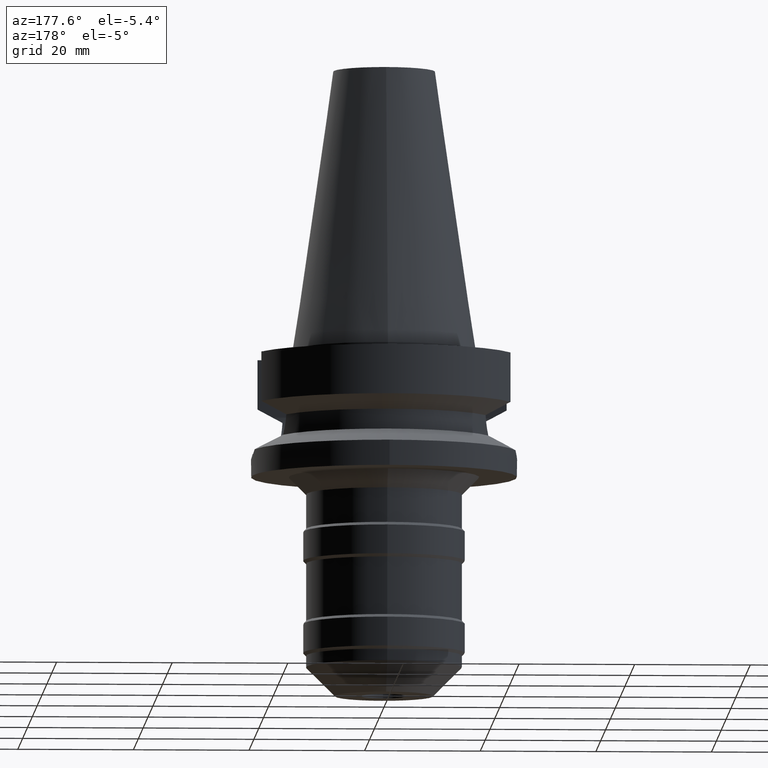
[diagram: clean part render]
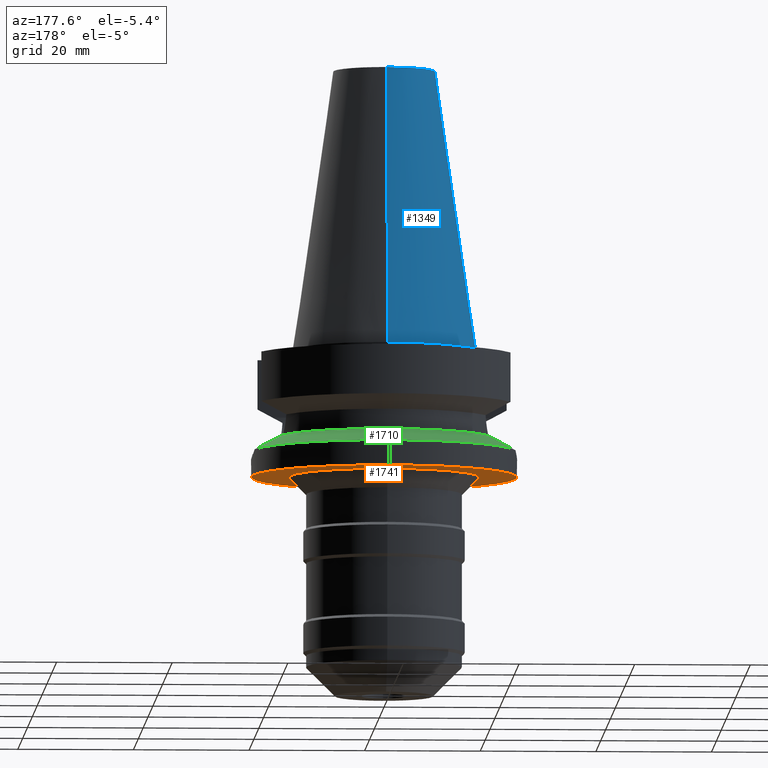
[diagram: same view with three faces highlighted in distinct colors, each labeled with its STEP entity id]
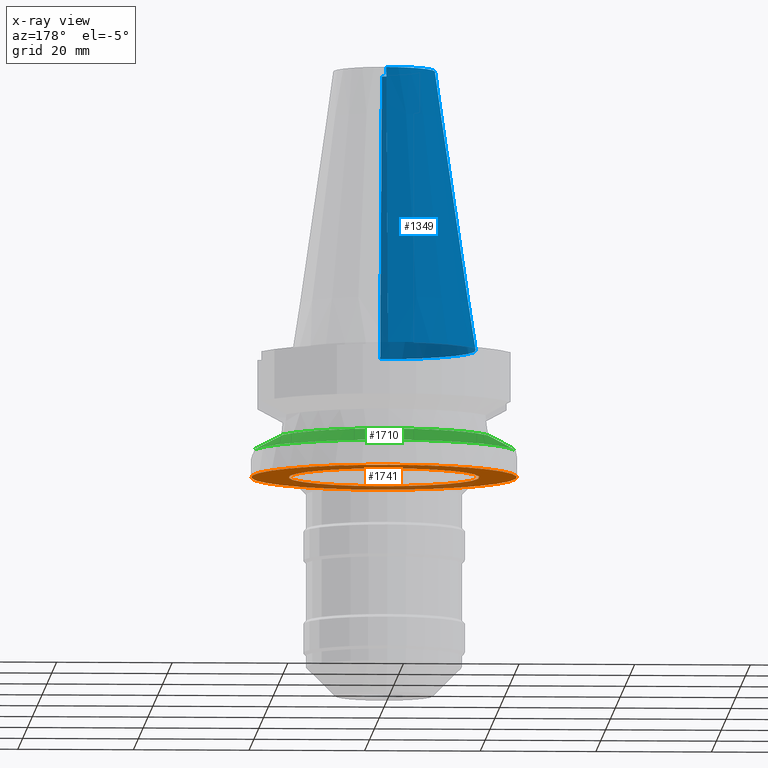
[diagram: x-ray of the same camera — body ghosted, the three highlighted faces saturated]
A machine part, auxiliary view with three faces highlighted in distinct colors.
The next image is the same camera in x-ray (body ghosted, the three faces saturated) — at least one of them is partly hidden behind the body in this view.
Their STEP definitions:

[orange] entity #1741 — the highlighted planar face has unit normal (0, 0, -1).
#619=CARTESIAN_POINT('',(0.E0,1.883751706448E-14,-2.2E1));
#620=DIRECTION('',(0.E0,0.E0,1.E0));
#621=DIRECTION('',(0.E0,-1.E0,0.E0));
#622=AXIS2_PLACEMENT_3D('',#619,#620,#621);
#627=CARTESIAN_POINT('',(0.E0,1.883751706448E-14,-2.2E1));
#628=DIRECTION('',(0.E0,0.E0,1.E0));
#629=DIRECTION('',(0.E0,1.E0,0.E0));
#630=AXIS2_PLACEMENT_3D('',#627,#628,#629);
#635=CARTESIAN_POINT('',(0.E0,0.E0,-2.2E1));
#636=DIRECTION('',(0.E0,0.E0,-1.E0));
#637=DIRECTION('',(0.E0,-1.E0,0.E0));
#638=AXIS2_PLACEMENT_3D('',#635,#636,#637);
#643=CARTESIAN_POINT('',(0.E0,0.E0,-2.2E1));
#644=DIRECTION('',(0.E0,0.E0,-1.E0));
#645=DIRECTION('',(0.E0,1.E0,0.E0));
#646=AXIS2_PLACEMENT_3D('',#643,#644,#645);
#1229=CARTESIAN_POINT('',(0.E0,1.65E1,-2.2E1));
#1230=VERTEX_POINT('',#1229);
#1231=CARTESIAN_POINT('',(0.E0,-1.65E1,-2.2E1));
#1232=VERTEX_POINT('',#1231);
#1233=CARTESIAN_POINT('',(0.E0,-2.3E1,-2.2E1));
#1234=CARTESIAN_POINT('',(0.E0,2.3E1,-2.2E1));
#1235=VERTEX_POINT('',#1233);
#1236=VERTEX_POINT('',#1234);
#1726=CARTESIAN_POINT('',(0.E0,0.E0,-2.2E1));
#1727=DIRECTION('',(0.E0,0.E0,-1.E0));
#1728=DIRECTION('',(0.E0,-1.E0,0.E0));
#1729=AXIS2_PLACEMENT_3D('',#1726,#1727,#1728);
#1730=PLANE('',#1729);
#1731=ORIENTED_EDGE('',*,*,#1686,.T.);
#1732=ORIENTED_EDGE('',*,*,#1719,.T.);
#1733=EDGE_LOOP('',(#1731,#1732));
#1734=FACE_OUTER_BOUND('',#1733,.F.);
#1736=ORIENTED_EDGE('',*,*,#1735,.T.);
#1738=ORIENTED_EDGE('',*,*,#1737,.T.);
#1739=EDGE_LOOP('',(#1736,#1738));
#1740=FACE_BOUND('',#1739,.F.);
#623=CIRCLE('',#622,2.3E1);
#631=CIRCLE('',#630,2.3E1);
#639=CIRCLE('',#638,1.65E1);
#647=CIRCLE('',#646,1.65E1);
#1686=EDGE_CURVE('',#1235,#1236,#623,.T.);
#1719=EDGE_CURVE('',#1236,#1235,#631,.T.);
#1735=EDGE_CURVE('',#1232,#1230,#639,.T.);
#1737=EDGE_CURVE('',#1230,#1232,#647,.T.);
#1741=ADVANCED_FACE('',(#1734,#1740),#1730,.T.);

[blue] entity #1349 — the highlighted conical surface has half-angle 8.297 deg.
#17=CARTESIAN_POINT('',(0.E0,1.521011324541E-14,4.84E1));
#18=DIRECTION('',(0.E0,0.E0,-1.E0));
#19=DIRECTION('',(0.E0,-1.E0,0.E0));
#20=AXIS2_PLACEMENT_3D('',#17,#18,#19);
#50=DIRECTION('',(0.E0,-1.443043893540E-1,-9.895333461856E-1));
#51=VECTOR('',#50,4.891194438931E1);
#52=CARTESIAN_POINT('',(0.E0,-8.816791732783E0,4.84E1));
#53=LINE('',#52,#51);
#57=CARTESIAN_POINT('',(0.E0,1.521011324541E-14,-3.694822225953E-13));
#58=DIRECTION('',(0.E0,0.E0,-1.E0));
#59=DIRECTION('',(0.E0,-1.E0,0.E0));
#60=AXIS2_PLACEMENT_3D('',#57,#58,#59);
#65=DIRECTION('',(0.E0,1.443043893540E-1,-9.895333461856E-1));
#66=VECTOR('',#65,4.891194438931E1);
#67=CARTESIAN_POINT('',(0.E0,8.816791732783E0,4.84E1));
#68=LINE('',#67,#66);
#1153=CARTESIAN_POINT('',(0.E0,-8.816791732783E0,4.84E1));
#1154=CARTESIAN_POINT('',(0.E0,8.816791732783E0,4.84E1));
#1155=VERTEX_POINT('',#1153);
#1156=VERTEX_POINT('',#1154);
#1313=CARTESIAN_POINT('',(0.E0,1.5875E1,-1.776356839400E-13));
#1314=VERTEX_POINT('',#1313);
#1315=CARTESIAN_POINT('',(0.E0,-1.5875E1,-1.776356839400E-13));
#1316=VERTEX_POINT('',#1315);
#1335=CARTESIAN_POINT('',(0.E0,1.521011324541E-14,2.42E1));
#1336=DIRECTION('',(0.E0,0.E0,-1.E0));
#1337=DIRECTION('',(0.E0,-1.E0,0.E0));
#1338=AXIS2_PLACEMENT_3D('',#1335,#1336,#1337);
#1339=CONICAL_SURFACE('',#1338,1.234589586639E1,8.297E0);
#1341=ORIENTED_EDGE('',*,*,#1340,.F.);
#1342=ORIENTED_EDGE('',*,*,#1322,.F.);
#1344=ORIENTED_EDGE('',*,*,#1343,.T.);
#1346=ORIENTED_EDGE('',*,*,#1345,.T.);
#1347=EDGE_LOOP('',(#1341,#1342,#1344,#1346));
#1348=FACE_OUTER_BOUND('',#1347,.F.);
#21=CIRCLE('',#20,8.816791732783E0);
#61=CIRCLE('',#60,1.5875E1);
#1322=EDGE_CURVE('',#1155,#1156,#21,.T.);
#1340=EDGE_CURVE('',#1156,#1314,#68,.T.);
#1343=EDGE_CURVE('',#1155,#1316,#53,.T.);
#1345=EDGE_CURVE('',#1316,#1314,#61,.T.);
#1349=ADVANCED_FACE('',(#1348),#1339,.T.);

[green] entity #1710 — the highlighted conical surface has half-angle 60 deg.
#533=CARTESIAN_POINT('',(2.255786346208E1,4.488072640470E0,-1.763279163029E1));
#545=CARTESIAN_POINT('',(-1.775736593456E1,6.758398853744E0,-1.532339055353E1));
#546=CARTESIAN_POINT('',(-1.829477187559E1,6.592763856864E0,-1.557935382947E1));
#547=CARTESIAN_POINT('',(-1.929749276745E1,6.240874261661E0,-1.605904865665E1));
#548=CARTESIAN_POINT('',(-2.057958073012E1,5.677583709601E0,-1.667585630320E1));
#549=CARTESIAN_POINT('',(-2.166787979027E1,5.090950036049E0,-1.720152183086E1));
#550=CARTESIAN_POINT('',(-2.228018191924E1,4.688567704543E0,-1.749814185196E1));
#551=CARTESIAN_POINT('',(-2.255786346208E1,4.488072640470E0,-1.763279163029E1));
#556=CARTESIAN_POINT('',(0.E0,1.022848384030E-14,-1.763279163029E1));
#557=DIRECTION('',(0.E0,0.E0,-1.E0));
#558=DIRECTION('',(-9.807766722644E-1,1.951335930639E-1,0.E0));
#559=AXIS2_PLACEMENT_3D('',#556,#557,#558);
#564=CARTESIAN_POINT('',(0.E0,1.022848384030E-14,-1.763279163029E1));
#565=DIRECTION('',(0.E0,0.E0,-1.E0));
#566=DIRECTION('',(0.E0,1.E0,0.E0));
#567=AXIS2_PLACEMENT_3D('',#564,#565,#566);
#572=CARTESIAN_POINT('',(2.255786346208E1,4.488072640470E0,-1.763279163029E1));
#573=CARTESIAN_POINT('',(2.228018737492E1,4.688563765371E0,-1.749814449746E1));
#574=CARTESIAN_POINT('',(2.166789733162E1,5.090938446914E0,-1.720153033150E1));
#575=CARTESIAN_POINT('',(2.057963824814E1,5.677554815601E0,-1.667588405440E1));
#576=CARTESIAN_POINT('',(1.929755978935E1,6.240848791639E0,-1.605908079747E1));
#577=CARTESIAN_POINT('',(1.829480080725E1,6.592754939778E0,-1.557936760945E1));
#578=CARTESIAN_POINT('',(1.775736593456E1,6.758398853744E0,-1.532339055353E1));
#583=CARTESIAN_POINT('',(0.E0,1.022848384030E-14,-1.532339055353E1));
#584=DIRECTION('',(0.E0,0.E0,1.E0));
#585=DIRECTION('',(9.345982070819E-1,3.557052028286E-1,0.E0));
#586=AXIS2_PLACEMENT_3D('',#583,#584,#585);
#591=CARTESIAN_POINT('',(0.E0,1.022848384030E-14,-1.532339055353E1));
#592=DIRECTION('',(0.E0,0.E0,1.E0));
#593=DIRECTION('',(0.E0,1.E0,0.E0));
#594=AXIS2_PLACEMENT_3D('',#591,#592,#593);
#1143=CARTESIAN_POINT('',(1.775736593456E1,6.758398853744E0,-1.532339055353E1));
#1238=VERTEX_POINT('',#533);
#1240=CARTESIAN_POINT('',(0.E0,2.3E1,-1.763279163029E1));
#1241=VERTEX_POINT('',#1240);
#1256=VERTEX_POINT('',#1143);
#1261=VERTEX_POINT('',#545);
#1262=VERTEX_POINT('',#551);
#1263=CARTESIAN_POINT('',(0.E0,1.9E1,-1.532339055353E1));
#1264=VERTEX_POINT('',#1263);
#1694=CARTESIAN_POINT('',(0.E0,1.022848384030E-14,-1.647809109191E1));
#1695=DIRECTION('',(0.E0,0.E0,-1.E0));
#1696=DIRECTION('',(0.E0,-1.E0,0.E0));
#1697=AXIS2_PLACEMENT_3D('',#1694,#1695,#1696);
#1698=CONICAL_SURFACE('',#1697,2.1E1,6.E1);
#1699=ORIENTED_EDGE('',*,*,#1602,.T.);
#1701=ORIENTED_EDGE('',*,*,#1700,.T.);
#1702=ORIENTED_EDGE('',*,*,#1682,.T.);
#1703=ORIENTED_EDGE('',*,*,#1670,.T.);
#1705=ORIENTED_EDGE('',*,*,#1704,.T.);
#1707=ORIENTED_EDGE('',*,*,#1706,.T.);
#1708=EDGE_LOOP('',(#1699,#1701,#1702,#1703,#1705,#1707));
#1709=FACE_OUTER_BOUND('',#1708,.F.);
#552=B_SPLINE_CURVE_WITH_KNOTS('',3,(#545,#546,#547,#548,#549,#550,#551),
.UNSPECIFIED.,.F.,.F.,(4,1,1,1,4),(0.E0,2.5E-1,5.E-1,7.5E-1,1.E0),
.UNSPECIFIED.);
#560=CIRCLE('',#559,2.3E1);
#568=CIRCLE('',#567,2.3E1);
#579=B_SPLINE_CURVE_WITH_KNOTS('',3,(#572,#573,#574,#575,#576,#577,#578),
.UNSPECIFIED.,.F.,.F.,(4,1,1,1,4),(0.E0,2.5E-1,5.E-1,7.5E-1,1.E0),
.UNSPECIFIED.);
#587=CIRCLE('',#586,1.9E1);
#595=CIRCLE('',#594,1.9E1);
#1602=EDGE_CURVE('',#1261,#1262,#552,.T.);
#1670=EDGE_CURVE('',#1238,#1256,#579,.T.);
#1682=EDGE_CURVE('',#1241,#1238,#568,.T.);
#1700=EDGE_CURVE('',#1262,#1241,#560,.T.);
#1704=EDGE_CURVE('',#1256,#1264,#587,.T.);
#1706=EDGE_CURVE('',#1264,#1261,#595,.T.);
#1710=ADVANCED_FACE('',(#1709),#1698,.T.);